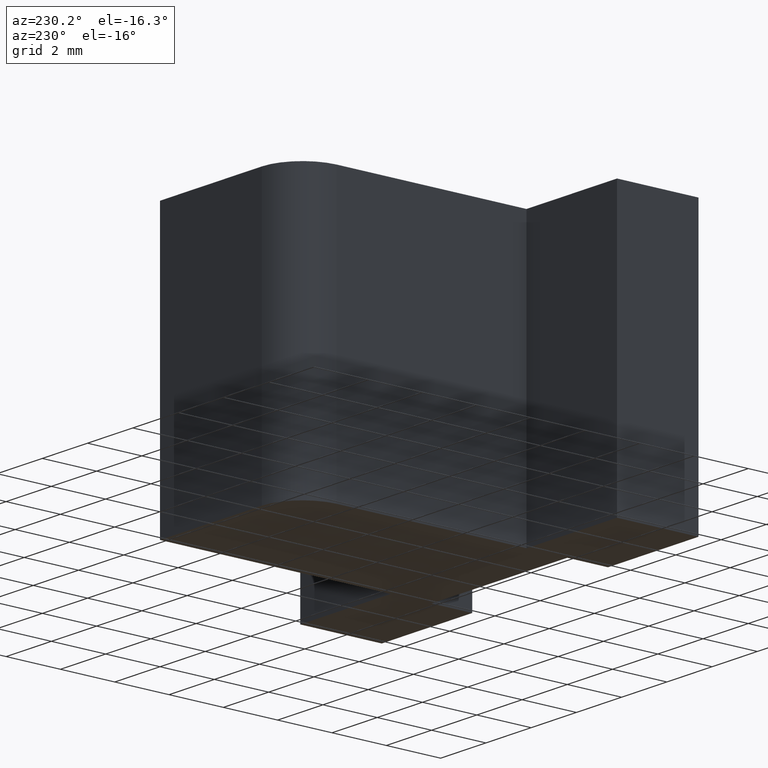
[diagram: clean part render]
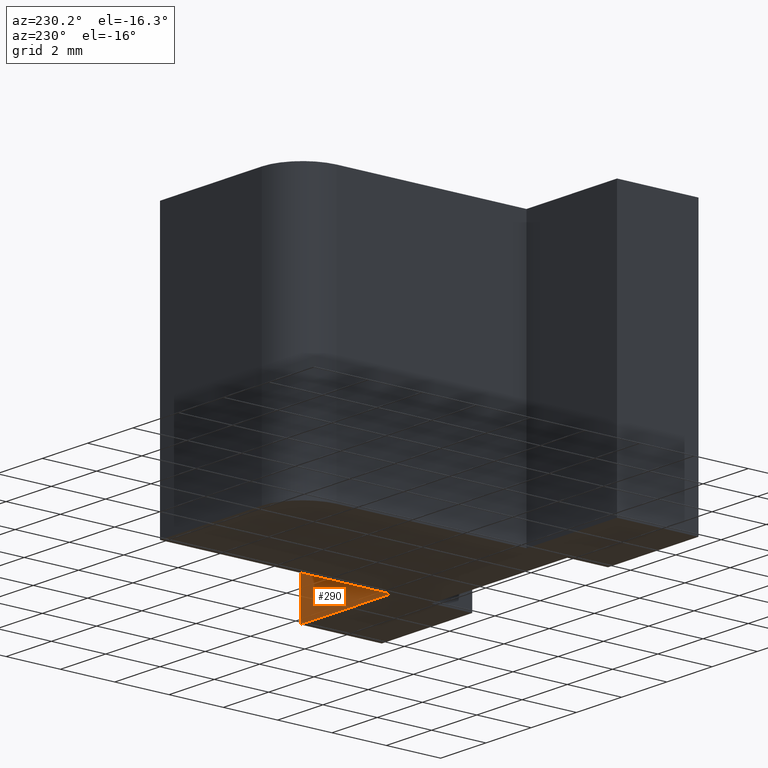
[diagram: same view with one face highlighted and labeled with its STEP entity id]
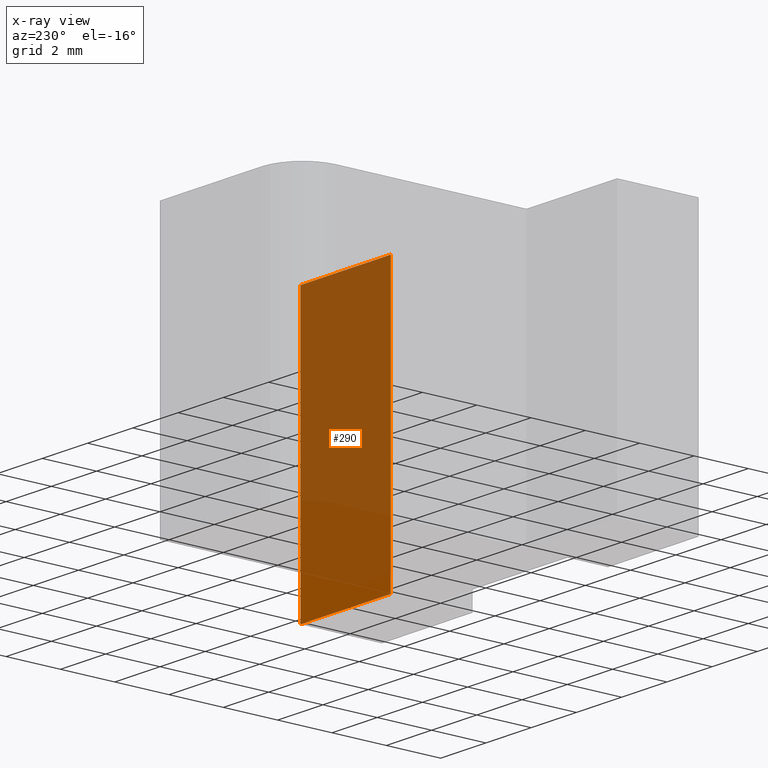
[diagram: x-ray of the same camera — body ghosted, the highlighted face saturated]
A machine part, auxiliary view. The second image highlights one B-rep face of the part: STEP entity #290.
The next image is the same camera in x-ray: the body ghosted, the highlighted face saturated — about 91% of this face is hidden behind the body in this view.
In plain terms, the highlighted planar face has unit normal (0, 1, 0).
Its self-contained STEP definition (entity closure, byte-faithful):
#27=FACE_OUTER_BOUND('',#42,.T.);
#42=EDGE_LOOP('',(#240,#241,#242,#243));
#59=LINE('',#431,#96);
#79=LINE('',#473,#116);
#80=LINE('',#476,#117);
#81=LINE('',#477,#118);
#96=VECTOR('',#348,10.);
#116=VECTOR('',#390,10.);
#117=VECTOR('',#393,10.);
#118=VECTOR('',#394,10.);
#123=VERTEX_POINT('',#407);
#134=VERTEX_POINT('',#429);
#145=VERTEX_POINT('',#471);
#146=VERTEX_POINT('',#475);
#160=EDGE_CURVE('',#123,#134,#59,.T.);
#181=EDGE_CURVE('',#145,#134,#79,.T.);
#182=EDGE_CURVE('',#145,#146,#80,.T.);
#183=EDGE_CURVE('',#146,#123,#81,.T.);
#240=ORIENTED_EDGE('',*,*,#182,.T.);
#241=ORIENTED_EDGE('',*,*,#183,.T.);
#242=ORIENTED_EDGE('',*,*,#160,.T.);
#243=ORIENTED_EDGE('',*,*,#181,.F.);
#275=PLANE('',#327);
#290=ADVANCED_FACE('',(#27),#275,.T.);
#327=AXIS2_PLACEMENT_3D('',#474,#391,#392);
#348=DIRECTION('',(-1.,2.77555756156289E-16,0.));
#390=DIRECTION('',(0.,0.,-1.));
#391=DIRECTION('center_axis',(2.77555756156289E-16,1.,0.));
#392=DIRECTION('ref_axis',(0.,0.,1.));
#393=DIRECTION('',(1.,-2.77555756156289E-16,0.));
#394=DIRECTION('',(0.,0.,-1.));
#407=CARTESIAN_POINT('',(7.,3.,-5.));
#429=CARTESIAN_POINT('',(3.,3.,-5.));
#431=CARTESIAN_POINT('',(3.,3.,-5.));
#471=CARTESIAN_POINT('',(3.,3.,5.));
#473=CARTESIAN_POINT('',(3.,3.,0.));
#474=CARTESIAN_POINT('Origin',(3.,3.,0.));
#475=CARTESIAN_POINT('',(7.,3.,5.));
#476=CARTESIAN_POINT('',(3.,3.,5.));
#477=CARTESIAN_POINT('',(7.,3.,0.));